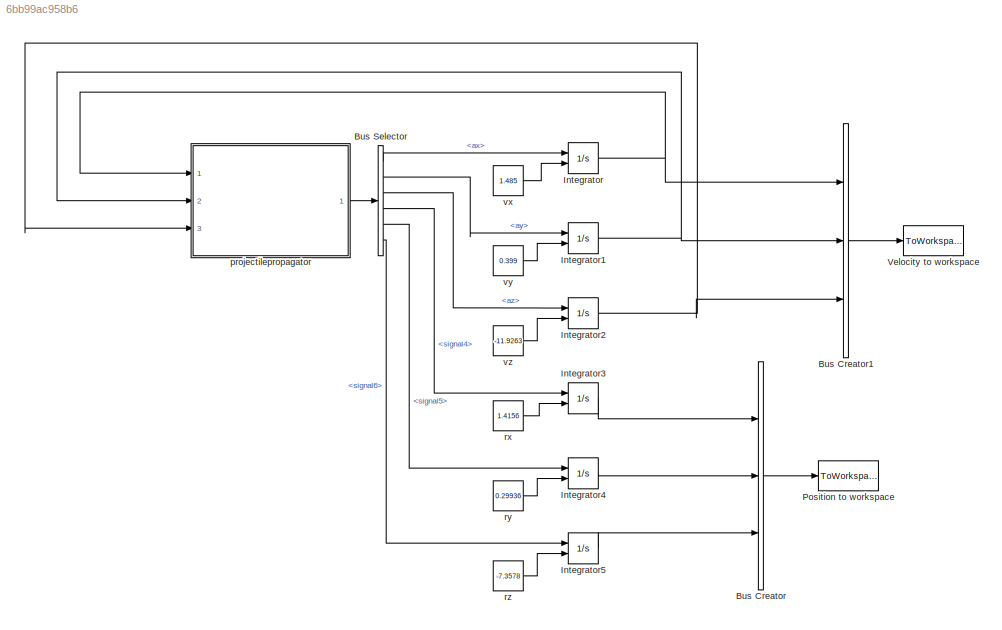
MODEL slx_6bb99ac958b6
KIND model
CONFIG AbsTol = auto
CONFIG EnableMultiTasking = off
CONFIG FixedStep = 0.05
CONFIG MaxStep = auto
CONFIG MinStep = auto
CONFIG RelTol = 1e-3
CONFIG SampleTimeConstraint = Unconstrained
CONFIG Solver = FixedStepAuto
CONFIG SolverName = FixedStepAuto
CONFIG StartTime = 0.0
CONFIG StopTime = 0.2
BLOCK [BusCreator] Bus Creator
  DisplayOption = bar
  InheritFromInputs = on
  Inputs = 3
  Ports = [3, 1]
BLOCK [BusCreator] Bus Creator1
  DisplayOption = bar
  InheritFromInputs = on
  Inputs = 3
  Ports = [3, 1]
BLOCK [BusSelector] Bus Selector
  OutputSignals = ax,ay,az,signal4,signal5,signal6
  Ports = [1, 6]
BLOCK [Integrator] Integrator
  InitialConditionSource = external
  Ports = [2, 1]
BLOCK [Integrator] Integrator1
  InitialConditionSource = external
  Ports = [2, 1]
BLOCK [Integrator] Integrator2
  InitialConditionSource = external
  Ports = [2, 1]
BLOCK [Integrator] Integrator3
  InitialConditionSource = external
  Ports = [2, 1]
BLOCK [Integrator] Integrator4
  InitialConditionSource = external
  Ports = [2, 1]
BLOCK [Integrator] Integrator5
  InitialConditionSource = external
  Ports = [2, 1]
BLOCK [ToWorkspace] Position to workspace
  FixptAsFi = on
  MaxDataPoints = inf
  Ports = [1]
  SampleTime = -1
  Save2DSignal = 3-D array (concatenate along third dimension)
  VariableName = projectilePos
BLOCK [ToWorkspace] Velocity to workspace
  FixptAsFi = on
  MaxDataPoints = inf
  Ports = [1]
  SampleTime = -1
  Save2DSignal = 3-D array (concatenate along third dimension)
  VariableName = projectileVel
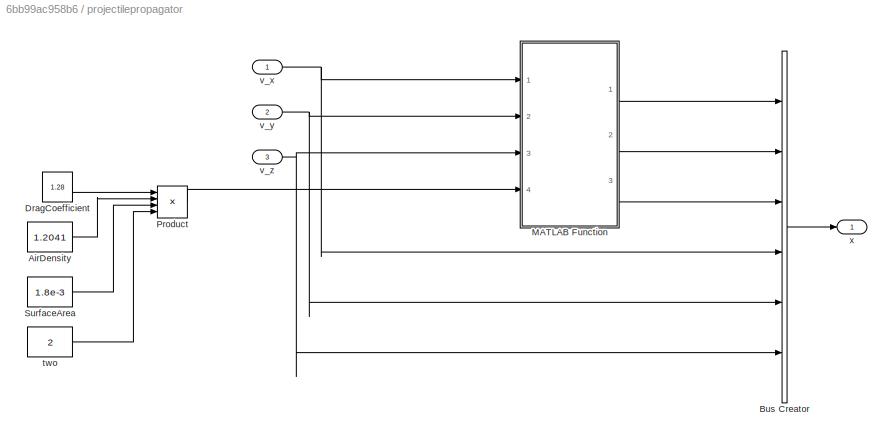
BLOCK [SubSystem] projectilepropagator
  Ports = [3, 1]
  RequestExecContextInheritance = off
  Variant = off
BLOCK [Constant] projectilepropagator/AirDensity
  Value = 1.2041
BLOCK [BusCreator] projectilepropagator/Bus Creator
  DisplayOption = bar
  InheritFromInputs = on
  Inputs = 6
  Ports = [6, 1]
BLOCK [Constant] projectilepropagator/DragCoefficient
  Value = 1.28
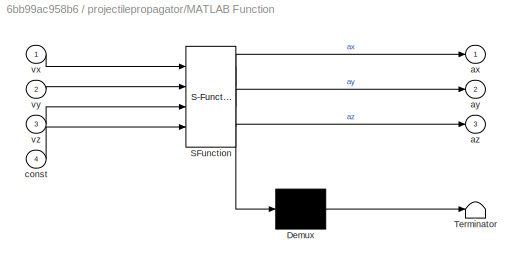
BLOCK [SubSystem] projectilepropagator/MATLAB Function
  ErrorFcn = Stateflow.Translate.translate
  PermitHierarchicalResolution = ExplicitOnly
  Ports = [4, 3]
  RequestExecContextInheritance = off
  SFBlockType = MATLAB Function
  TreatAsAtomicUnit = on
  Variant = off
BLOCK [Demux] projectilepropagator/MATLAB Function/ Demux 
  Outputs = 1
  Ports = [1, 1]
BLOCK [S-Function] projectilepropagator/MATLAB Function/ SFunction 
  EnableBusSupport = on
  FunctionName = sf_sfun
  PortCounts = [4 4]
  Ports = [4, 4]
  SFcnIsStateOwnerBlock = off
  SFunctionDeploymentMode = off
  Tag = Stateflow S-Function projectile 2
BLOCK [Terminator] projectilepropagator/MATLAB Function/ Terminator 
BLOCK [Outport] projectilepropagator/MATLAB Function/ax
  IconDisplay = Port number
BLOCK [Outport] projectilepropagator/MATLAB Function/ay
  IconDisplay = Port number
  Port = 2
BLOCK [Outport] projectilepropagator/MATLAB Function/az
  IconDisplay = Port number
  Port = 3
BLOCK [Inport] projectilepropagator/MATLAB Function/const
  IconDisplay = Port number
  Port = 4
BLOCK [Inport] projectilepropagator/MATLAB Function/vx
  IconDisplay = Port number
BLOCK [Inport] projectilepropagator/MATLAB Function/vy
  IconDisplay = Port number
  Port = 2
BLOCK [Inport] projectilepropagator/MATLAB Function/vz
  IconDisplay = Port number
  Port = 3
BLOCK [Product] projectilepropagator/Product
  InputSameDT = off
  Inputs = 4
  OutDataTypeStr = Inherit: Inherit via internal rule
  Ports = [4, 1]
  RndMeth = Floor
  SaturateOnIntegerOverflow = off
BLOCK [Constant] projectilepropagator/SurfaceArea
  Value = 1.8e-3
BLOCK [Constant] projectilepropagator/two
  Value = 2
BLOCK [Inport] projectilepropagator/v_x
  IconDisplay = Port number
BLOCK [Inport] projectilepropagator/v_y
  IconDisplay = Port number
  Port = 2
BLOCK [Inport] projectilepropagator/v_z
  IconDisplay = Port number
  Port = 3
BLOCK [Outport] projectilepropagator/x
  IconDisplay = Port number
BLOCK [Constant] rx
  Value = 1.4156
BLOCK [Constant] ry
  Value = 0.29936
BLOCK [Constant] rz
  Value = -7.3578
BLOCK [Constant] vx
  Value = 1.485
BLOCK [Constant] vy
  Value = 0.399
BLOCK [Constant] vz
  Value = -11.9263
LINE Bus Creator1:1 -> Velocity to workspace:1
LINE Bus Creator:1 -> Position to workspace:1
LINE Bus Selector:1 -> Integrator:1
LINE Bus Selector:2 -> Integrator1:1
LINE Bus Selector:3 -> Integrator2:1
LINE Bus Selector:4 -> Integrator3:1
LINE Bus Selector:5 -> Integrator4:1
LINE Bus Selector:6 -> Integrator5:1
NET Integrator1:1 -> Bus Creator1:2, projectilepropagator:2
NET Integrator2:1 -> Bus Creator1:3, projectilepropagator:3
LINE Integrator3:1 -> Bus Creator:1
LINE Integrator4:1 -> Bus Creator:2
LINE Integrator5:1 -> Bus Creator:3
NET Integrator:1 -> Bus Creator1:1, projectilepropagator:1
LINE projectilepropagator/AirDensity:1 -> projectilepropagator/Product:2
LINE projectilepropagator/Bus Creator:1 -> projectilepropagator/x:1
LINE projectilepropagator/DragCoefficient:1 -> projectilepropagator/Product:1
LINE projectilepropagator/MATLAB Function:1 -> projectilepropagator/Bus Creator:1
LINE projectilepropagator/MATLAB Function:2 -> projectilepropagator/Bus Creator:2
LINE projectilepropagator/MATLAB Function:3 -> projectilepropagator/Bus Creator:3
LINE projectilepropagator/Product:1 -> projectilepropagator/MATLAB Function:4
LINE projectilepropagator/SurfaceArea:1 -> projectilepropagator/Product:3
LINE projectilepropagator/two:1 -> projectilepropagator/Product:4
NET projectilepropagator/v_x:1 -> projectilepropagator/Bus Creator:4, projectilepropagator/MATLAB Function:1
NET projectilepropagator/v_y:1 -> projectilepropagator/Bus Creator:5, projectilepropagator/MATLAB Function:2
NET projectilepropagator/v_z:1 -> projectilepropagator/Bus Creator:6, projectilepropagator/MATLAB Function:3
LINE projectilepropagator:1 -> Bus Selector:1
LINE rx:1 -> Integrator3:2
LINE ry:1 -> Integrator4:2
LINE rz:1 -> Integrator5:2
LINE vx:1 -> Integrator:2
LINE vy:1 -> Integrator1:2
LINE vz:1 -> Integrator2:2
note: NET lines group one-source signal fan-out (src -> all destinations, sorted); 1:1 wires keep LINE
CHART projectilepropagator/MATLAB Function states=1 transitions=1
  STATE_LABEL 'eML_blk_kernel()'
  STATE_LABEL 'SCRIPT:\nfunction [ax,ay,az] = fcn(vx, vy, vz, const)\n\n    g = 9.81;\n    \n    rx = const * (vx^2);\n    ry = const * (vy^2);\n    rz = const * (vz^2);\n    \n    if(vx < 0)\n        ax = rx;\n    else\n        ax = -rx;\n    end\n\n    if(vy < 0)\n        ay = ry;\n    else\n        ay = -ry;\n    end\n\n    if(vz < 0)\n        az = -g + rz;\n    else\n        az = -g - rz;\n    end\n    \nend\n\n\n'
